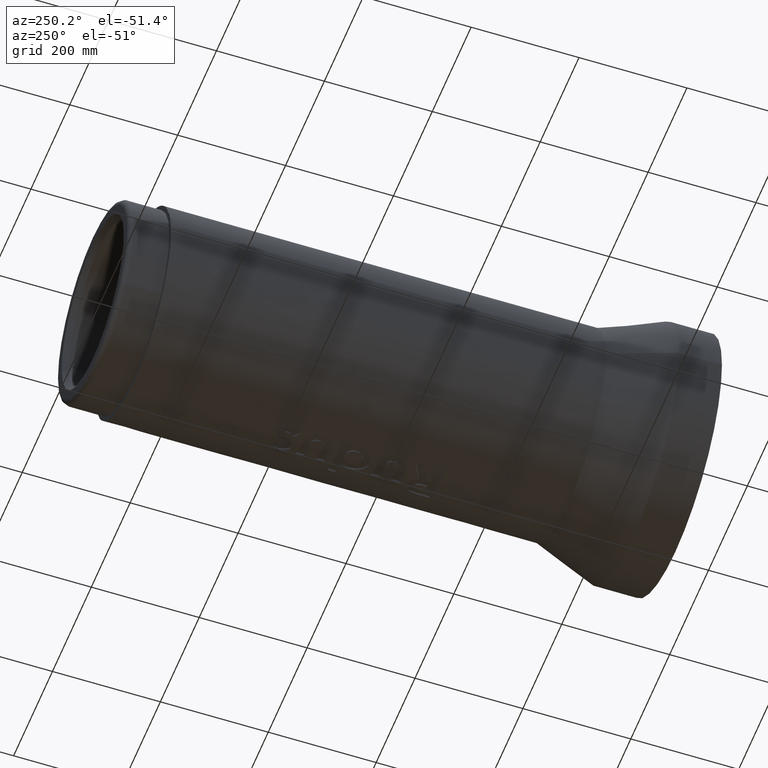
[diagram: clean part render]
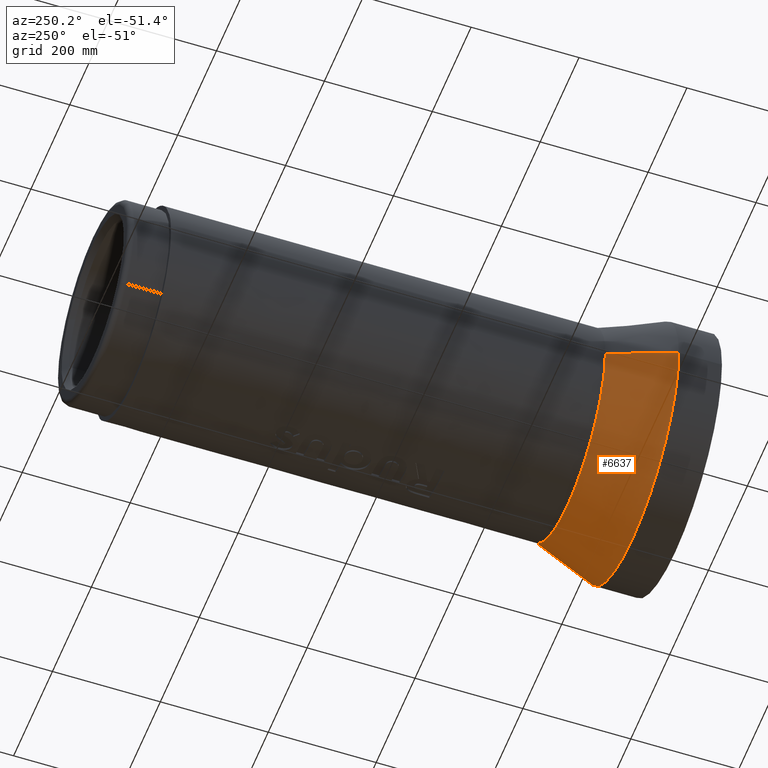
[diagram: same view with one face highlighted and labeled with its STEP entity id]
A machine part, auxiliary view. The second image highlights one B-rep face of the part: STEP entity #6637.
In plain terms, the highlighted conical surface has half-angle 20.556 deg.
Its self-contained STEP definition (entity closure, byte-faithful):
#12 = VERTEX_POINT ( 'NONE', #9011 ) ;
#16 = EDGE_CURVE ( 'NONE', #6979, #478, #21792, .T. ) ;
#195 = CARTESIAN_POINT ( 'NONE',  ( -93.43150469766167987, 171.1594400841823074, 120.0000000000000853 ) ) ;
#478 = VERTEX_POINT ( 'NONE', #2377 ) ;
#520 = VERTEX_POINT ( 'NONE', #22219 ) ;
#560 = CARTESIAN_POINT ( 'NONE',  ( 109.3333040447207196, 161.7361649045908223, 119.9985853696520621 ) ) ;
#583 = CARTESIAN_POINT ( 'NONE',  ( -165.2616696872125885, 103.5136318134570672, 119.9991745852827592 ) ) ;
#793 = CARTESIAN_POINT ( 'NONE',  ( 125.9562250467271838, 148.8810472249773795, 119.9991036086531153 ) ) ;
#965 = VECTOR ( 'NONE', #13249, 1000.000000000000000 ) ;
#1162 = CARTESIAN_POINT ( 'NONE',  ( 87.30328401167304264, 174.5044663778552945, 120.0000000000000142 ) ) ;
#1169 = VERTEX_POINT ( 'NONE', #8756 ) ;
#1573 = CARTESIAN_POINT ( 'NONE',  ( -178.8340856186432006, 77.75791615941074042, 120.0000000000000000 ) ) ;
#1713 = CARTESIAN_POINT ( 'NONE',  ( -194.3350243680259553, 18.57948972028060908, 119.9987375001324779 ) ) ;
#1752 = CARTESIAN_POINT ( 'NONE',  ( 190.0618272974927550, 43.67016793596801705, 119.9991684667505183 ) ) ;
#1776 = B_SPLINE_CURVE_WITH_KNOTS ( 'NONE', 3,
 ( #19377, #10726, #10607, #17839, #18079, #7092, #22932, #7212, #12395, #19614 ),
 .UNSPECIFIED., .F., .F.,
 ( 4, 2, 2, 2, 4 ),
 ( 0.7067394987586550492, 0.7136686242814183068, 0.7205977498041816753, 0.7344560008497083015, 0.7621725029407615537 ),
 .UNSPECIFIED. ) ;
#1789 = CIRCLE ( 'NONE', #19886, 240.0000000000000000 ) ;
#1920 = DIRECTION ( 'NONE',  ( -1.224646799147351728E-16, -0.0000000000000000000, -1.000000000000000000 ) ) ;
#1950 = CARTESIAN_POINT ( 'NONE',  ( -90.36183957891122986, 172.8084356756878606, 119.9999999999999858 ) ) ;
#2063 = CARTESIAN_POINT ( 'NONE',  ( 186.0903649767876402, 58.29569165761592586, 120.0000000000000426 ) ) ;
#2065 = CARTESIAN_POINT ( 'NONE',  ( -188.3953519130567429, 50.53267203784294992, 119.9996740000988069 ) ) ;
#2197 = CARTESIAN_POINT ( 'NONE',  ( 93.43150470859822576, 171.1594400782123557, 120.0000000000000284 ) ) ;
#2301 = ORIENTED_EDGE ( 'NONE', *, *, #15988, .F. ) ;
#2377 = CARTESIAN_POINT ( 'NONE',  ( 171.1594400784039749, 93.43150470824724607, 120.0000000000000284 ) ) ;
#2399 = DIRECTION ( 'NONE',  ( -1.000000000000000000, 0.0000000000000000000, 1.224646799147351482E-16 ) ) ;
#2623 = VERTEX_POINT ( 'NONE', #17496 ) ;
#2736 = VERTEX_POINT ( 'NONE', #18928 ) ;
#3183 = ORIENTED_EDGE ( 'NONE', *, *, #11171, .F. ) ;
#3287 = CARTESIAN_POINT ( 'NONE',  ( 188.3666193507316393, 50.48293751672811425, 119.9996614569708981 ) ) ;
#3438 = CARTESIAN_POINT ( 'NONE',  ( -124.1258313274863525, 150.3971284163964413, 119.9989643694355834 ) ) ;
#3523 = CARTESIAN_POINT ( 'NONE',  ( 194.9999999999999432, 1.319919086464045264E-13, 120.0000000000000284 ) ) ;
#3525 = CARTESIAN_POINT ( 'NONE',  ( -240.0000000000000000, 0.0000000000000000000, 5.714709879516534907E-14 ) ) ;
#3603 = CARTESIAN_POINT ( 'NONE',  ( 185.0169122421115731, 61.61755267011102433, 120.0000000000000142 ) ) ;
#3793 = CARTESIAN_POINT ( 'NONE',  ( -134.6126582623529089, 141.1589864004062633, 119.9999999999997442 ) ) ;
#3794 = B_SPLINE_CURVE_WITH_KNOTS ( 'NONE', 3,
 ( #5202, #18073, #6970, #14530, #5563, #12391, #3438, #15949, #12747, #19962, #3793, #15833 ),
 .UNSPECIFIED., .F., .F.,
 ( 4, 2, 2, 2, 2, 4 ),
 ( 1.011518128802207706, 1.039226000240776271, 1.046152968100418468, 1.049616452030239566, 1.053079935960060665, 1.066933871679344836 ),
 .UNSPECIFIED. ) ;
#3834 = CARTESIAN_POINT ( 'NONE',  ( -194.9999999999998863, 0.0000000000000000000, 120.0000000000000568 ) ) ;
#3841 = CARTESIAN_POINT ( 'NONE',  ( -54.96195018662478304, 187.0940512995614711, 120.0000000000000284 ) ) ;
#3890 = CARTESIAN_POINT ( 'NONE',  ( -4.686571801599430209, 194.9472389675261184, 119.9998779543819865 ) ) ;
#3957 = CARTESIAN_POINT ( 'NONE',  ( -191.4860039485783147, 36.92816064845228397, 119.9988020006131109 ) ) ;
#4090 = CARTESIAN_POINT ( 'NONE',  ( 124.1683113752575878, 150.3756703854117518, 119.9989571327072326 ) ) ;
#4114 = CARTESIAN_POINT ( 'NONE',  ( -164.6381220809120975, 104.5025511683396502, 119.9991018087462038 ) ) ;
#4138 = EDGE_CURVE ( 'NONE', #4963, #11128, #8735, .T. ) ;
#4168 = ORIENTED_EDGE ( 'NONE', *, *, #16, .F. ) ;
#4182 = LINE ( 'NONE', #3834, #965 ) ;
#4268 = EDGE_CURVE ( 'NONE', #12372, #12, #14099, .T. ) ;
#4622 = LINE ( 'NONE', #19133, #7359 ) ;
#4806 = CARTESIAN_POINT ( 'NONE',  ( 81.03206173721622463, 177.5016635199642963, 120.0000000000000426 ) ) ;
#4914 = ORIENTED_EDGE ( 'NONE', *, *, #22168, .F. ) ;
#4963 = VERTEX_POINT ( 'NONE', #8648 ) ;
#5051 = CARTESIAN_POINT ( 'NONE',  ( 191.5497887974510149, 36.81981516836407309, 119.9987707922221176 ) ) ;
#5202 = CARTESIAN_POINT ( 'NONE',  ( -93.43150469766167987, 171.1594400841823074, 120.0000000000000853 ) ) ;
#5368 = CARTESIAN_POINT ( 'NONE',  ( 187.0940512993042830, 54.96195018750048433, 120.0000000000000284 ) ) ;
#5493 = CARTESIAN_POINT ( 'NONE',  ( -87.25082758065377675, 174.3997693947708001, 120.0000000000000284 ) ) ;
#5563 = CARTESIAN_POINT ( 'NONE',  ( -120.4868428232401527, 153.3413741026143100, 119.9987429326393737 ) ) ;
#5608 = CARTESIAN_POINT ( 'NONE',  ( 181.4564376689600635, 71.48793623527853924, 120.0000000000000426 ) ) ;
#5648 = CARTESIAN_POINT ( 'NONE',  ( -171.1594400765911530, 93.43150471156802439, 120.0000000000000853 ) ) ;
#5697 = CARTESIAN_POINT ( 'NONE',  ( -172.8248410425080692, 90.38042416589969719, 120.0000000000000142 ) ) ;
#5722 = CARTESIAN_POINT ( 'NONE',  ( -189.5439224435668280, 46.04251765386667472, 119.9993077788522555 ) ) ;
#6110 = CARTESIAN_POINT ( 'NONE',  ( 93.43150470859822576, 171.1594400782123557, 120.0000000000000284 ) ) ;
#6637 = ADVANCED_FACE ( 'NONE', ( #14181 ), #19043, .T. ) ;
#6970 = CARTESIAN_POINT ( 'NONE',  ( -109.3250438251580618, 161.7402186076167254, 119.9985871519996579 ) ) ;
#6979 = VERTEX_POINT ( 'NONE', #14628 ) ;
#7054 = CARTESIAN_POINT ( 'NONE',  ( 8.779088567223425343E-11, 194.9999999999999147, 120.0000000000000284 ) ) ;
#7092 = CARTESIAN_POINT ( 'NONE',  ( 161.4897374042740239, 109.3992143642595494, 119.9987712151071406 ) ) ;
#7182 = CARTESIAN_POINT ( 'NONE',  ( 8.779088567223425343E-11, 194.9999999999999147, 120.0000000000000284 ) ) ;
#7212 = CARTESIAN_POINT ( 'NONE',  ( 150.4816931524237020, 124.3646896919076710, 119.9987442476670481 ) ) ;
#7301 = CARTESIAN_POINT ( 'NONE',  ( -23.25382731607600206, 193.6643086687645905, 119.9986965514486741 ) ) ;
#7302 = EDGE_CURVE ( 'NONE', #12, #8900, #4182, .T. ) ;
#7359 = VECTOR ( 'NONE', #13460, 1000.000000000000114 ) ;
#7421 = CARTESIAN_POINT ( 'NONE',  ( -5.855835708790044336, 194.9156252011904087, 119.9998137789681749 ) ) ;
#7461 = CARTESIAN_POINT ( 'NONE',  ( -93.43150469766167987, 171.1594400841823074, 120.0000000000000853 ) ) ;
#7485 = CARTESIAN_POINT ( 'NONE',  ( 174.4701205351644546, 87.36620695609208553, 120.0000000000000568 ) ) ;
#7524 = CARTESIAN_POINT ( 'NONE',  ( -168.8903563559053396, 97.50163065431885911, 119.9996611855329434 ) ) ;
#7576 = ORIENTED_EDGE ( 'NONE', *, *, #9710, .F. ) ;
#7708 = B_SPLINE_CURVE_WITH_KNOTS ( 'NONE', 3,
 ( #19749, #5697, #14431, #21642, #12536, #1573, #21877, #8748, #17975, #15969 ),
 .UNSPECIFIED., .F., .F.,
 ( 4, 2, 2, 2, 4 ),
 ( 0.5127906498232023269, 0.5231537279965163822, 0.5283352670831733544, 0.5335168061698303266, 0.5542429625164583262 ),
 .UNSPECIFIED. ) ;
#7713 = CARTESIAN_POINT ( 'NONE',  ( -194.9999999999999147, 0.0000000000000000000, 120.0000000000000853 ) ) ;
#7964 = CARTESIAN_POINT ( 'NONE',  ( 131.2270526479605905, 144.3126604469795211, 119.9995877059085387 ) ) ;
#8250 = CARTESIAN_POINT ( 'NONE',  ( -187.0940512984262512, 54.96195019048921893, 120.0000000000000853 ) ) ;
#8464 = CARTESIAN_POINT ( 'NONE',  ( 189.5224183108516343, 45.95445600432753253, 119.9993277608452900 ) ) ;
#8581 = CARTESIAN_POINT ( 'NONE',  ( 194.9999999999999432, 9.259680865058397714, 120.0000000000000000 ) ) ;
#8648 = CARTESIAN_POINT ( 'NONE',  ( -54.96195018662478304, 187.0940512995614711, 120.0000000000000284 ) ) ;
#8693 = CARTESIAN_POINT ( 'NONE',  ( 46.01059864633319307, 189.7239153226188364, 119.9993411703620154 ) ) ;
#8735 = B_SPLINE_CURVE_WITH_KNOTS ( 'NONE', 3,
 ( #3841, #15995, #18119, #21667, #8894, #10647, #5493, #1950, #9128, #195 ),
 .UNSPECIFIED., .F., .F.,
 ( 4, 2, 2, 2, 4 ),
 ( 0.3603062206321523964, 0.3810394667535682567, 0.3914060898142761591, 0.3965894013446301103, 0.4017727128749840615 ),
 .UNSPECIFIED. ) ;
#8748 = CARTESIAN_POINT ( 'NONE',  ( -182.8464144124497182, 68.12098061886364064, 120.0000000000000142 ) ) ;
#8756 = CARTESIAN_POINT ( 'NONE',  ( -137.8858223314999520, 137.8858223312534221, 120.0000000000000853 ) ) ;
#8894 = CARTESIAN_POINT ( 'NONE',  ( -80.94119013668158402, 177.4420083427576174, 120.0000000000000284 ) ) ;
#8900 = VERTEX_POINT ( 'NONE', #3525 ) ;
#9011 = CARTESIAN_POINT ( 'NONE',  ( -194.9999999999999147, 0.0000000000000000000, 120.0000000000000853 ) ) ;
#9095 = VERTEX_POINT ( 'NONE', #16039 ) ;
#9097 = CARTESIAN_POINT ( 'NONE',  ( 2.775557561562891351E-14, 0.0000000000000000000, 120.0000000000000284 ) ) ;
#9126 = CARTESIAN_POINT ( 'NONE',  ( 186.6037550046827107, 56.63078722776840834, 120.0000000000000426 ) ) ;
#9128 = CARTESIAN_POINT ( 'NONE',  ( -91.90351330236499905, 171.9934784869900000, 120.0000000000000142 ) ) ;
#9238 = CARTESIAN_POINT ( 'NONE',  ( 184.4564789985321909, 63.27555522753640105, 120.0000000000000284 ) ) ;
#9668 = ORIENTED_EDGE ( 'NONE', *, *, #4138, .F. ) ;
#9710 = EDGE_CURVE ( 'NONE', #11128, #1169, #3794, .T. ) ;
#9785 = ORIENTED_EDGE ( 'NONE', *, *, #13474, .F. ) ;
#9978 = CARTESIAN_POINT ( 'NONE',  ( 68.20879735673125310, 182.8130071195651283, 120.0000000000000426 ) ) ;
#10033 = CARTESIAN_POINT ( 'NONE',  ( 0.0000000000000000000, 0.0000000000000000000, 2.775557561562891351E-14 ) ) ;
#10439 = CARTESIAN_POINT ( 'NONE',  ( 61.65675385653154450, 185.1271501859507680, 120.0000000000000284 ) ) ;
#10607 = CARTESIAN_POINT ( 'NONE',  ( 168.8969747978618159, 97.48996994707661656, 119.9996621922499003 ) ) ;
#10647 = CARTESIAN_POINT ( 'NONE',  ( -85.67912939348070722, 175.1772556560317469, 120.0000000000000142 ) ) ;
#10726 = CARTESIAN_POINT ( 'NONE',  ( 170.0473725107450775, 95.46885654768338725, 119.9998360920508844 ) ) ;
#11044 = CARTESIAN_POINT ( 'NONE',  ( -150.4907777710721462, 124.3526696547710770, 119.9987440461652000 ) ) ;
#11120 = CARTESIAN_POINT ( 'NONE',  ( -192.3119374467238742, 32.35300691308580667, 119.9986680949014186 ) ) ;
#11128 = VERTEX_POINT ( 'NONE', #7461 ) ;
#11171 = EDGE_CURVE ( 'NONE', #13637, #12372, #7708, .T. ) ;
#11173 = CARTESIAN_POINT ( 'NONE',  ( -1.170702186777780485, 195.0000000000004547, 119.9999999999999289 ) ) ;
#11177 = EDGE_CURVE ( 'NONE', #2736, #9095, #4622, .T. ) ;
#11209 = ORIENTED_EDGE ( 'NONE', *, *, #17110, .F. ) ;
#11283 = CARTESIAN_POINT ( 'NONE',  ( -170.0443827241069528, 95.47433395515274412, 119.9998356513855242 ) ) ;
#11370 = ORIENTED_EDGE ( 'NONE', *, *, #13904, .F. ) ;
#11534 = VERTEX_POINT ( 'NONE', #6110 ) ;
#11876 = CARTESIAN_POINT ( 'NONE',  ( 93.43150470859822576, 171.1594400782123557, 120.0000000000000284 ) ) ;
#12210 = ORIENTED_EDGE ( 'NONE', *, *, #7302, .F. ) ;
#12372 = VERTEX_POINT ( 'NONE', #8250 ) ;
#12391 = CARTESIAN_POINT ( 'NONE',  ( -123.2197483665658666, 151.1404061918621551, 119.9989014941907470 ) ) ;
#12395 = CARTESIAN_POINT ( 'NONE',  ( 144.4260191654529422, 131.3456254973116017, 119.9999999999998010 ) ) ;
#12536 = CARTESIAN_POINT ( 'NONE',  ( -177.4134789780534618, 80.94685272960715849, 120.0000000000000000 ) ) ;
#12559 = CARTESIAN_POINT ( 'NONE',  ( 171.1594400784039749, 93.43150470824724607, 120.0000000000000284 ) ) ;
#12598 = CARTESIAN_POINT ( 'NONE',  ( 36.95363227874073431, 191.6905928375054771, 119.9985850980470161 ) ) ;
#12747 = CARTESIAN_POINT ( 'NONE',  ( -126.8093136475813054, 148.1414088562443681, 119.9991820304785364 ) ) ;
#12842 = CARTESIAN_POINT ( 'NONE',  ( -18.64425418567196502, 194.1627750971008766, 119.9989351510212856 ) ) ;
#12906 = CARTESIAN_POINT ( 'NONE',  ( -191.0311470181294453, 39.21336652703887182, 119.9989089720931759 ) ) ;
#12956 = CARTESIAN_POINT ( 'NONE',  ( -36.99436002847087224, 191.6827619387985067, 119.9985868820923116 ) ) ;
#13249 = DIRECTION ( 'NONE',  ( -0.3511234415883922044, 0.0000000000000000000, -0.9363291775690443242 ) ) ;
#13260 = B_SPLINE_CURVE_WITH_KNOTS ( 'NONE', 3,
 ( #16036, #8693, #12598, #15915, #23237, #7054 ),
 .UNSPECIFIED., .F., .F.,
 ( 4, 2, 4 ),
 ( 0.8590557758080941131, 0.8868165353574960497, 0.9145772949068979862 ),
 .UNSPECIFIED. ) ;
#13321 = B_SPLINE_CURVE_WITH_KNOTS ( 'NONE', 3,
 ( #3523, #8581, #15801, #17920, #5051, #1752, #8464, #3287, #22778, #21003 ),
 .UNSPECIFIED., .F., .F.,
 ( 4, 2, 2, 2, 4 ),
 ( 0.6096564158579269588, 0.6373794409368457314, 0.6512409534763050623, 0.6581717097460347832, 0.6651024660157645041 ),
 .UNSPECIFIED. ) ;
#13460 = DIRECTION ( 'NONE',  ( 0.3511234415883919824, 4.300021988468271018E-17, -0.9363291775690444352 ) ) ;
#13474 = EDGE_CURVE ( 'NONE', #11534, #2623, #14447, .T. ) ;
#13637 = VERTEX_POINT ( 'NONE', #13659 ) ;
#13659 = CARTESIAN_POINT ( 'NONE',  ( -171.1594400765911530, 93.43150471156802439, 120.0000000000000853 ) ) ;
#13904 = EDGE_CURVE ( 'NONE', #520, #4963, #14415, .T. ) ;
#14099 = B_SPLINE_CURVE_WITH_KNOTS ( 'NONE', 3,
 ( #21787, #2065, #5722, #12906, #3957, #11120, #17882, #1713, #14922, #7713 ),
 .UNSPECIFIED., .F., .F.,
 ( 4, 2, 2, 2, 4 ),
 ( 1.164019668883615966, 1.177808336730499228, 1.184702670653940970, 1.191597004577382712, 1.219174340271149459 ),
 .UNSPECIFIED. ) ;
#14181 = FACE_OUTER_BOUND ( 'NONE', #19021, .T. ) ;
#14223 = ORIENTED_EDGE ( 'NONE', *, *, #15222, .F. ) ;
#14369 = EDGE_CURVE ( 'NONE', #478, #18899, #1776, .T. ) ;
#14386 = CARTESIAN_POINT ( 'NONE',  ( -2.344229425444897430, 194.9894379296763134, 119.9999710865604357 ) ) ;
#14415 = B_SPLINE_CURVE_WITH_KNOTS ( 'NONE', 3,
 ( #7182, #11173, #14386, #3890, #7421, #16283, #21596, #12842, #7301, #12956, #19821, #14624 ),
 .UNSPECIFIED., .F., .F.,
 ( 4, 2, 2, 2, 2, 4 ),
 ( 0.9145772949068979862, 0.9180457050879841097, 0.9215141152690702331, 0.9284509356312424799, 0.9423245763555868626, 0.9700718578042757390 ),
 .UNSPECIFIED. ) ;
#14431 = CARTESIAN_POINT ( 'NONE',  ( -174.4137228834098323, 87.27570991550859958, 120.0000000000001279 ) ) ;
#14447 = B_SPLINE_CURVE_WITH_KNOTS ( 'NONE', 3,
 ( #11876, #1162, #4806, #9978, #10439, #17433 ),
 .UNSPECIFIED., .F., .F.,
 ( 4, 2, 4 ),
 ( 0.2078210270545852167, 0.2286401232180647614, 0.2494592193815443337 ),
 .UNSPECIFIED. ) ;
#14530 = CARTESIAN_POINT ( 'NONE',  ( -118.6438334799208008, 154.7716064666745694, 119.9986780512228393 ) ) ;
#14624 = CARTESIAN_POINT ( 'NONE',  ( -54.96195018662478304, 187.0940512995614711, 120.0000000000000284 ) ) ;
#14628 = CARTESIAN_POINT ( 'NONE',  ( 187.0940512993042830, 54.96195018750048433, 120.0000000000000284 ) ) ;
#14822 = CARTESIAN_POINT ( 'NONE',  ( 134.6171641623450341, 141.1544805004030820, 119.9999999999998153 ) ) ;
#14922 = CARTESIAN_POINT ( 'NONE',  ( -195.0000000000000000, 9.324775680185213744, 120.0000000000000853 ) ) ;
#15148 = DIRECTION ( 'NONE',  ( -1.224646799147351728E-16, -0.0000000000000000000, -1.000000000000000000 ) ) ;
#15222 = EDGE_CURVE ( 'NONE', #18899, #11534, #20887, .T. ) ;
#15801 = CARTESIAN_POINT ( 'NONE',  ( 194.3442521191421974, 18.47775597928817248, 119.9987441782002975 ) ) ;
#15833 = CARTESIAN_POINT ( 'NONE',  ( -137.8858223314999520, 137.8858223312534221, 120.0000000000000853 ) ) ;
#15915 = CARTESIAN_POINT ( 'NONE',  ( 18.63342025503564159, 194.3286596652820606, 119.9987355474430188 ) ) ;
#15917 = CARTESIAN_POINT ( 'NONE',  ( -144.4363282920523943, 131.3353163706892417, 119.9999999999998010 ) ) ;
#15949 = CARTESIAN_POINT ( 'NONE',  ( -125.9201722044662120, 148.8979783614492760, 119.9991046119690310 ) ) ;
#15969 = CARTESIAN_POINT ( 'NONE',  ( -187.0940512984262512, 54.96195019048921893, 120.0000000000000853 ) ) ;
#15988 = EDGE_CURVE ( 'NONE', #8900, #9095, #1789, .T. ) ;
#15995 = CARTESIAN_POINT ( 'NONE',  ( -61.59282506083928155, 185.1459321588523892, 120.0000000000000426 ) ) ;
#16036 = CARTESIAN_POINT ( 'NONE',  ( 54.96195019310595598, 187.0940512976575292, 120.0000000000000284 ) ) ;
#16039 = CARTESIAN_POINT ( 'NONE',  ( 240.0000000000000000, 2.939152317953647342E-14, -1.635947563907523032E-15 ) ) ;
#16283 = CARTESIAN_POINT ( 'NONE',  ( -9.357951009389113395, 194.7894914446256678, 119.9995957198420342 ) ) ;
#16618 = CARTESIAN_POINT ( 'NONE',  ( -167.0999711815318562, 100.5189213074044829, 119.9994107011063420 ) ) ;
#16675 = ORIENTED_EDGE ( 'NONE', *, *, #4268, .F. ) ;
#17110 = EDGE_CURVE ( 'NONE', #2623, #520, #13260, .T. ) ;
#17433 = CARTESIAN_POINT ( 'NONE',  ( 54.96195019310595598, 187.0940512976575292, 120.0000000000000284 ) ) ;
#17496 = CARTESIAN_POINT ( 'NONE',  ( 54.96195019310595598, 187.0940512976575292, 120.0000000000000284 ) ) ;
#17839 = CARTESIAN_POINT ( 'NONE',  ( 166.5185350592485918, 101.4993029880361348, 119.9993292750760503 ) ) ;
#17882 = CARTESIAN_POINT ( 'NONE',  ( -192.6834558494907128, 30.06104961489124960, 119.9986413268739227 ) ) ;
#17920 = CARTESIAN_POINT ( 'NONE',  ( 192.3723670202615494, 32.24216551262576758, 119.9986201965856338 ) ) ;
#17975 = CARTESIAN_POINT ( 'NONE',  ( -185.1464681151683465, 61.59100080883023764, 119.9999999999999858 ) ) ;
#17998 = CARTESIAN_POINT ( 'NONE',  ( 182.7066459682891093, 68.23079604591779912, 120.0000000000000142 ) ) ;
#18073 = CARTESIAN_POINT ( 'NONE',  ( -101.5396068862134058, 166.7337158163882407, 119.9993476912660810 ) ) ;
#18079 = CARTESIAN_POINT ( 'NONE',  ( 165.2897011500597273, 103.4887527504332354, 119.9991703800637879 ) ) ;
#18119 = CARTESIAN_POINT ( 'NONE',  ( -68.12080378142465520, 182.8462487130579461, 120.0000000000000284 ) ) ;
#18253 = CARTESIAN_POINT ( 'NONE',  ( 118.6773756554736678, 154.7459876580264790, 119.9986788485819460 ) ) ;
#18365 = CARTESIAN_POINT ( 'NONE',  ( 137.8858223312613518, 137.8858223314921361, 120.0000000000000284 ) ) ;
#18555 = ORIENTED_EDGE ( 'NONE', *, *, #14369, .F. ) ;
#18630 = CARTESIAN_POINT ( 'NONE',  ( -166.4926494016899312, 101.5217540505018547, 119.9993290379338191 ) ) ;
#18899 = VERTEX_POINT ( 'NONE', #22916 ) ;
#18928 = CARTESIAN_POINT ( 'NONE',  ( 194.9999999999999432, 1.319919086464045264E-13, 120.0000000000000284 ) ) ;
#19021 = EDGE_LOOP ( 'NONE', ( #4914, #21720, #2301, #12210, #16675, #3183, #21146, #7576, #9668, #11370, #11209, #9785, #14223, #18555, #4168 ) ) ;
#19043 = CONICAL_SURFACE ( 'NONE', #22809, 194.9999999999999147, 0.3587706702705726891 ) ;
#19133 = CARTESIAN_POINT ( 'NONE',  ( 194.9999999999999432, 2.388061258337337913E-14, 120.0000000000000000 ) ) ;
#19377 = CARTESIAN_POINT ( 'NONE',  ( 171.1594400784039749, 93.43150470824724607, 120.0000000000000284 ) ) ;
#19459 = CARTESIAN_POINT ( 'NONE',  ( -137.8858223314999520, 137.8858223312534221, 120.0000000000000853 ) ) ;
#19614 = CARTESIAN_POINT ( 'NONE',  ( 137.8858223312613518, 137.8858223314921361, 120.0000000000000284 ) ) ;
#19749 = CARTESIAN_POINT ( 'NONE',  ( -171.1594400765911530, 93.43150471156802439, 120.0000000000000853 ) ) ;
#19821 = CARTESIAN_POINT ( 'NONE',  ( -46.03757820531850342, 189.7159888576354945, 119.9993431560881589 ) ) ;
#19826 = EDGE_CURVE ( 'NONE', #1169, #13637, #20298, .T. ) ;
#19886 = AXIS2_PLACEMENT_3D ( 'NONE', #10033, #15148, #2399 ) ;
#19962 = CARTESIAN_POINT ( 'NONE',  ( -131.2152051413568472, 144.3238757727228290, 119.9995863413866601 ) ) ;
#20005 = CARTESIAN_POINT ( 'NONE',  ( 177.4604896160898306, 81.12341857368934939, 120.0000000000000426 ) ) ;
#20284 = CARTESIAN_POINT ( 'NONE',  ( -158.8265753165129297, 113.2289274157496664, 119.9986202393832713 ) ) ;
#20298 = B_SPLINE_CURVE_WITH_KNOTS ( 'NONE', 3,
 ( #19459, #15917, #11044, #20284, #22058, #4114, #583, #18630, #16618, #7524, #11283, #5648 ),
 .UNSPECIFIED., .F., .F.,
 ( 4, 2, 2, 2, 2, 4 ),
 ( 1.066933871679344836, 1.094659426093710808, 1.108522203300893905, 1.111987897602689790, 1.115453591904485453, 1.122384980508077001 ),
 .UNSPECIFIED. ) ;
#20496 = CARTESIAN_POINT ( 'NONE',  ( 120.5296054462983761, 153.3077201412401962, 119.9987448234309682 ) ) ;
#20887 = B_SPLINE_CURVE_WITH_KNOTS ( 'NONE', 3,
 ( #18365, #14822, #7964, #793, #4090, #20496, #18253, #560, #21806, #2197 ),
 .UNSPECIFIED., .F., .F.,
 ( 4, 2, 2, 2, 4 ),
 ( 0.7621725029407615537, 0.7760246504021475200, 0.7829507241328406142, 0.7898767978635335973, 0.8175810927863055300 ),
 .UNSPECIFIED. ) ;
#21003 = CARTESIAN_POINT ( 'NONE',  ( 187.0940512993042830, 54.96195018750048433, 120.0000000000000284 ) ) ;
#21146 = ORIENTED_EDGE ( 'NONE', *, *, #19826, .F. ) ;
#21596 = CARTESIAN_POINT ( 'NONE',  ( -11.68512780256214789, 194.6636890341399919, 119.9994180390508518 ) ) ;
#21635 = DIRECTION ( 'NONE',  ( -1.000000000000000000, 0.0000000000000000000, 1.423362852083534639E-16 ) ) ;
#21642 = CARTESIAN_POINT ( 'NONE',  ( -176.6796825436058214, 82.53637651834887379, 120.0000000000001137 ) ) ;
#21667 = CARTESIAN_POINT ( 'NONE',  ( -77.75576150557589017, 178.8602677585377876, 120.0000000000000142 ) ) ;
#21720 = ORIENTED_EDGE ( 'NONE', *, *, #11177, .T. ) ;
#21787 = CARTESIAN_POINT ( 'NONE',  ( -187.0940512984262512, 54.96195019048921893, 120.0000000000000853 ) ) ;
#21792 = B_SPLINE_CURVE_WITH_KNOTS ( 'NONE', 3,
 ( #5368, #9126, #2063, #3603, #9238, #17998, #5608, #20005, #7485, #12559 ),
 .UNSPECIFIED., .F., .F.,
 ( 4, 2, 2, 2, 4 ),
 ( 0.05550916096219628976, 0.06069154502504479215, 0.06587392908789328760, 0.07623869721359029239, 0.09696823346498428808 ),
 .UNSPECIFIED. ) ;
#21806 = CARTESIAN_POINT ( 'NONE',  ( 101.5374799602916625, 166.7348767763759270, 119.9993478623801479 ) ) ;
#21877 = CARTESIAN_POINT ( 'NONE',  ( -179.5215980327716068, 76.15704191020689962, 120.0000000000000000 ) ) ;
#22058 = CARTESIAN_POINT ( 'NONE',  ( -161.4804285744745869, 109.4123406391174171, 119.9987707519330655 ) ) ;
#22168 = EDGE_CURVE ( 'NONE', #2736, #6979, #13321, .T. ) ;
#22219 = CARTESIAN_POINT ( 'NONE',  ( 8.779088567223425343E-11, 194.9999999999999147, 120.0000000000000284 ) ) ;
#22778 = CARTESIAN_POINT ( 'NONE',  ( 187.7496086288481933, 52.73060892393569077, 119.9998357707492431 ) ) ;
#22809 = AXIS2_PLACEMENT_3D ( 'NONE', #9097, #1920, #21635 ) ;
#22916 = CARTESIAN_POINT ( 'NONE',  ( 137.8858223312613518, 137.8858223314921361, 120.0000000000000284 ) ) ;
#22932 = CARTESIAN_POINT ( 'NONE',  ( 158.8299510973446900, 113.2244740655438591, 119.9986201559647441 ) ) ;
#23237 = CARTESIAN_POINT ( 'NONE',  ( 9.370166796033680967, 194.9999999999957936, 119.9999999999999289 ) ) ;